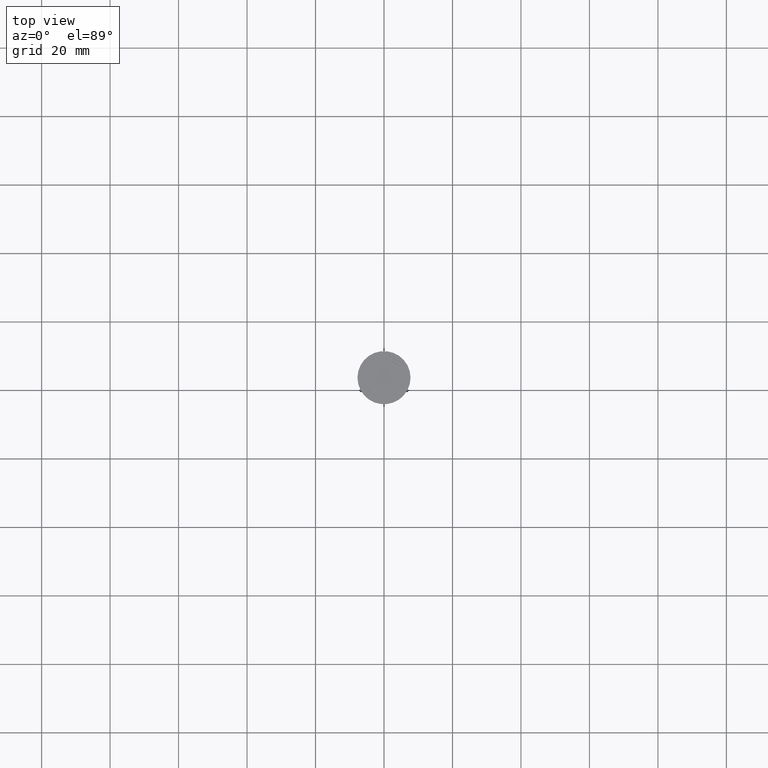
[diagram: clean part render]
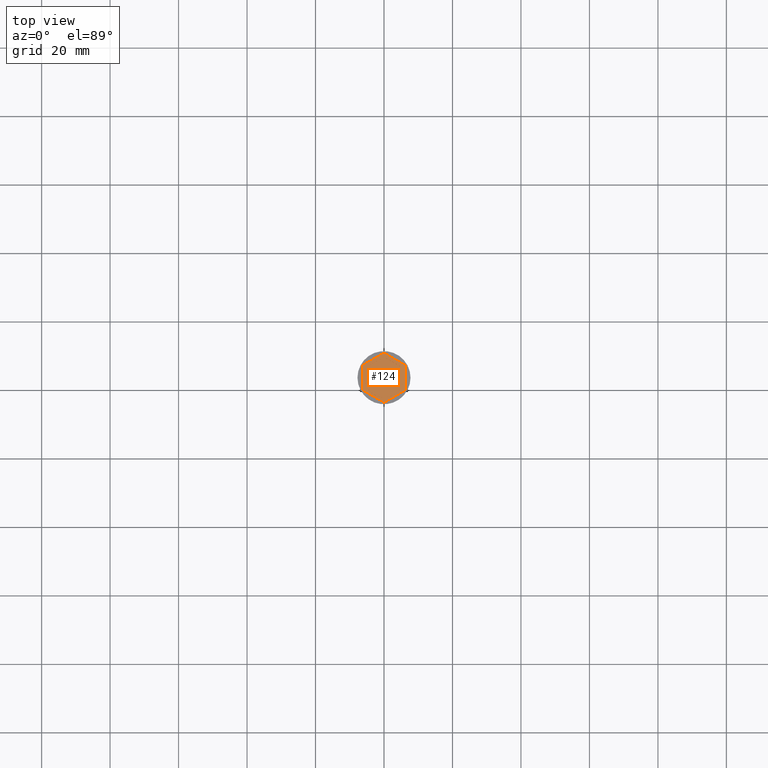
[diagram: same view with one face highlighted and labeled with its STEP entity id]
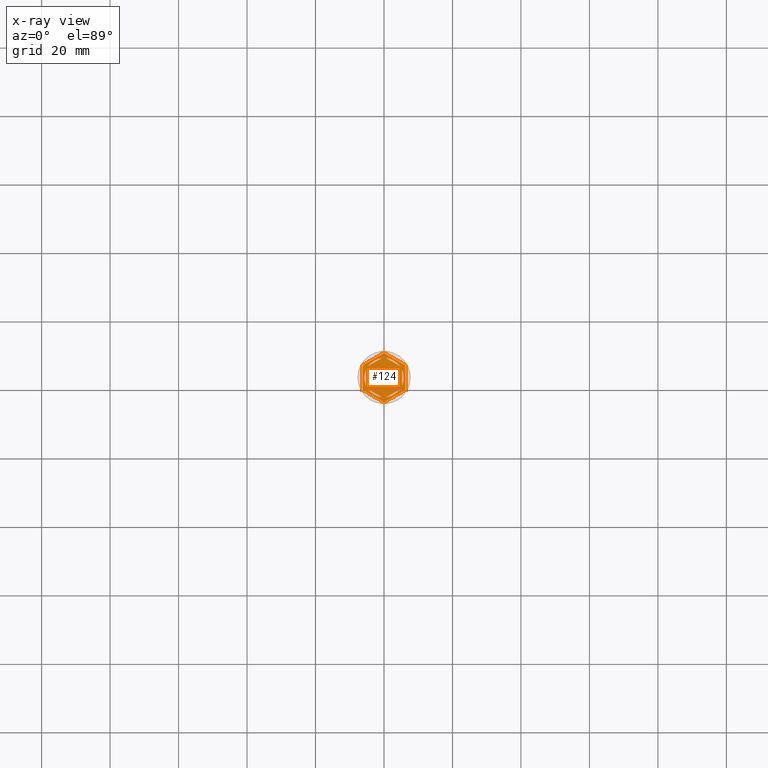
[diagram: x-ray of the same camera — body ghosted, the highlighted face saturated]
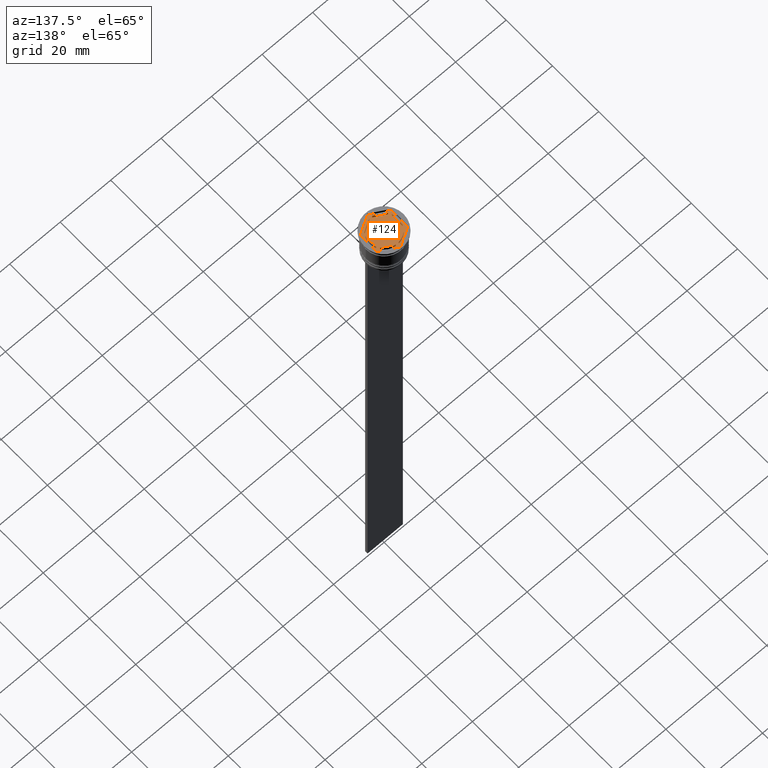
[diagram: same view with one face highlighted and labeled with its STEP entity id]
A machine part, top view. The second image highlights one B-rep face of the part: STEP entity #124.
The next image is the same camera in x-ray: the body ghosted, the highlighted face saturated — about 0% of this face is hidden behind the body in this view.
A second angle (auxiliary view) of the same face is appended — the face is thin or edge-on in the first view.
In plain terms, the highlighted planar face has unit normal (0, 0, 1).
Its self-contained STEP definition (entity closure, byte-faithful):
#7 = FACE_BOUND ( 'NONE', #117, .T. ) ;
#28 = DIRECTION ( 'NONE',  ( 1.000000000000000000, 0.000000000000000000, 0.000000000000000000 ) ) ;
#37 = AXIS2_PLACEMENT_3D ( 'NONE', #63, #1148, #2059 ) ;
#43 = CIRCLE ( 'NONE', #1214, 5.750000000000000000 ) ;
#45 = CARTESIAN_POINT ( 'NONE',  ( 0.000000000000000000, 0.000000000000000000, -1.000000000000000000 ) ) ;
#63 = CARTESIAN_POINT ( 'NONE',  ( 0.000000000000000000, 0.000000000000000000, -1.000000000000000000 ) ) ;
#64 = AXIS2_PLACEMENT_3D ( 'NONE', #1794, #1806, #1960 ) ;
#71 = CARTESIAN_POINT ( 'NONE',  ( 0.000000000000000000, 0.000000000000000000, -1.000000000000000000 ) ) ;
#79 = CARTESIAN_POINT ( 'NONE',  ( -5.249999999999999112, -3.031088913245534311, -1.000000000000000888 ) ) ;
#90 = CARTESIAN_POINT ( 'NONE',  ( -5.249999999999999112, 2.345207879911715310, -1.000000000000000888 ) ) ;
#103 = DIRECTION ( 'NONE',  ( 0.000000000000000000, 0.000000000000000000, 1.000000000000000000 ) ) ;
#106 = EDGE_CURVE ( 'NONE', #1798, #1620, #1422, .T. ) ;
#117 = EDGE_LOOP ( 'NONE', ( #1415, #762 ) ) ;
#124 = ADVANCED_FACE ( 'NONE', ( #358, #2336, #367, #1795, #1622, #7, #1088 ), #1313, .T. ) ;
#126 = DIRECTION ( 'NONE',  ( 1.000000000000000000, 0.000000000000000000, 0.000000000000000000 ) ) ;
#141 = ORIENTED_EDGE ( 'NONE', *, *, #1502, .F. ) ;
#142 = CIRCLE ( 'NONE', #64, 5.750000000000000000 ) ;
#150 = EDGE_CURVE ( 'NONE', #244, #1161, #573, .T. ) ;
#152 = CARTESIAN_POINT ( 'NONE',  ( -6.249999999999999112, -3.608439182435161374, -1.000000000000000000 ) ) ;
#155 = ORIENTED_EDGE ( 'NONE', *, *, #1265, .F. ) ;
#163 = DIRECTION ( 'NONE',  ( 2.403703357979454647E-16, 1.000000000000000000, 0.000000000000000000 ) ) ;
#164 = EDGE_CURVE ( 'NONE', #1536, #1304, #947, .T. ) ;
#174 = CARTESIAN_POINT ( 'NONE',  ( -6.249999999999999112, -3.608439182435161374, -1.000000000000000000 ) ) ;
#201 = EDGE_LOOP ( 'NONE', ( #1725, #373 ) ) ;
#211 = CARTESIAN_POINT ( 'NONE',  ( 6.250000000000000000, 3.608439182435161374, -1.000000000000000000 ) ) ;
#240 = CIRCLE ( 'NONE', #350, 5.750000000000000000 ) ;
#242 = DIRECTION ( 'NONE',  ( -0.8660254037844384856, 0.5000000000000002220, 0.000000000000000000 ) ) ;
#244 = VERTEX_POINT ( 'NONE', #966 ) ;
#281 = CARTESIAN_POINT ( 'NONE',  ( -6.249999999999999112, 3.608439182435158710, -1.000000000000000000 ) ) ;
#289 = CARTESIAN_POINT ( 'NONE',  ( 0.000000000000000000, 0.000000000000000000, -1.000000000000000000 ) ) ;
#307 = AXIS2_PLACEMENT_3D ( 'NONE', #1692, #2035, #1528 ) ;
#313 = CARTESIAN_POINT ( 'NONE',  ( 8.673617379884035472E-16, 6.062177826491070398, -1.000000000000000888 ) ) ;
#350 = AXIS2_PLACEMENT_3D ( 'NONE', #397, #2337, #28 ) ;
#356 = CARTESIAN_POINT ( 'NONE',  ( 8.729740977282959667E-16, -7.216878364870321860, -1.000000000000000000 ) ) ;
#358 = FACE_BOUND ( 'NONE', #2003, .T. ) ;
#360 = EDGE_CURVE ( 'NONE', #1304, #1461, #1201, .T. ) ;
#367 = FACE_BOUND ( 'NONE', #1820, .T. ) ;
#373 = ORIENTED_EDGE ( 'NONE', *, *, #1114, .F. ) ;
#383 = VECTOR ( 'NONE', #2313, 1000.000000000000227 ) ;
#393 = VECTOR ( 'NONE', #242, 1000.000000000000114 ) ;
#397 = CARTESIAN_POINT ( 'NONE',  ( 0.000000000000000000, 0.000000000000000000, -1.000000000000000000 ) ) ;
#417 = DIRECTION ( 'NONE',  ( 1.000000000000000000, 0.000000000000000000, 0.000000000000000000 ) ) ;
#419 = VECTOR ( 'NONE', #2331, 1000.000000000000114 ) ;
#446 = DIRECTION ( 'NONE',  ( 0.000000000000000000, -1.000000000000000000, 0.000000000000000000 ) ) ;
#496 = DIRECTION ( 'NONE',  ( 0.000000000000000000, 0.000000000000000000, 1.000000000000000000 ) ) ;
#503 = CARTESIAN_POINT ( 'NONE',  ( 5.249999999999997335, 3.031088913245537864, -1.000000000000000888 ) ) ;
#516 = VERTEX_POINT ( 'NONE', #1076 ) ;
#546 = ORIENTED_EDGE ( 'NONE', *, *, #1759, .T. ) ;
#573 = CIRCLE ( 'NONE', #1481, 5.750000000000000000 ) ;
#591 = EDGE_CURVE ( 'NONE', #990, #2089, #784, .T. ) ;
#621 = ORIENTED_EDGE ( 'NONE', *, *, #106, .T. ) ;
#630 = CARTESIAN_POINT ( 'NONE',  ( 0.000000000000000000, 7.216878364870320084, -1.000000000000000000 ) ) ;
#649 = DIRECTION ( 'NONE',  ( 0.000000000000000000, 0.000000000000000000, 1.000000000000000000 ) ) ;
#656 = ORIENTED_EDGE ( 'NONE', *, *, #591, .F. ) ;
#658 = CARTESIAN_POINT ( 'NONE',  ( -0.5939903988410105695, -5.719237309824160675, -1.000000000000000888 ) ) ;
#670 = ORIENTED_EDGE ( 'NONE', *, *, #1137, .F. ) ;
#699 = CARTESIAN_POINT ( 'NONE',  ( 0.5939903988410126789, 5.719237309824160675, -1.000000000000000888 ) ) ;
#709 = ORIENTED_EDGE ( 'NONE', *, *, #1972, .F. ) ;
#716 = EDGE_CURVE ( 'NONE', #516, #1798, #1561, .T. ) ;
#718 = CARTESIAN_POINT ( 'NONE',  ( 6.249999999999998224, -3.608439182435161374, -1.000000000000000000 ) ) ;
#727 = VERTEX_POINT ( 'NONE', #1163 ) ;
#760 = VECTOR ( 'NONE', #809, 1000.000000000000000 ) ;
#762 = ORIENTED_EDGE ( 'NONE', *, *, #1140, .F. ) ;
#770 = CARTESIAN_POINT ( 'NONE',  ( -5.750000000000000000, 0.000000000000000000, -1.000000000000000000 ) ) ;
#784 = LINE ( 'NONE', #942, #1026 ) ;
#787 = EDGE_CURVE ( 'NONE', #1673, #1143, #43, .T. ) ;
#809 = DIRECTION ( 'NONE',  ( 0.000000000000000000, 1.000000000000000000, 0.000000000000000000 ) ) ;
#820 = VERTEX_POINT ( 'NONE', #1083 ) ;
#851 = EDGE_LOOP ( 'NONE', ( #670, #1850, #1873 ) ) ;
#866 = DIRECTION ( 'NONE',  ( 1.000000000000000000, 0.000000000000000000, 0.000000000000000000 ) ) ;
#907 = DIRECTION ( 'NONE',  ( 0.8660254037844385966, 0.5000000000000001110, 0.000000000000000000 ) ) ;
#926 = CARTESIAN_POINT ( 'NONE',  ( 5.249999999999996447, -3.031088913245536975, -1.000000000000000888 ) ) ;
#942 = CARTESIAN_POINT ( 'NONE',  ( -1.734723475976807094E-15, -6.062177826491069510, -1.000000000000000888 ) ) ;
#947 = CIRCLE ( 'NONE', #37, 5.750000000000000000 ) ;
#948 = ORIENTED_EDGE ( 'NONE', *, *, #2148, .T. ) ;
#966 = CARTESIAN_POINT ( 'NONE',  ( 4.656009601158988431, 3.374029429912448919, -1.000000000000000888 ) ) ;
#990 = VERTEX_POINT ( 'NONE', #1307 ) ;
#1011 = ORIENTED_EDGE ( 'NONE', *, *, #787, .F. ) ;
#1026 = VECTOR ( 'NONE', #1666, 1000.000000000000114 ) ;
#1042 = VERTEX_POINT ( 'NONE', #630 ) ;
#1069 = VECTOR ( 'NONE', #2282, 1000.000000000000000 ) ;
#1071 = VERTEX_POINT ( 'NONE', #1111 ) ;
#1076 = CARTESIAN_POINT ( 'NONE',  ( -6.249999999999999112, 3.608439182435158710, -1.000000000000000000 ) ) ;
#1082 = EDGE_LOOP ( 'NONE', ( #2329, #948, #2243, #621, #546, #1841 ) ) ;
#1083 = CARTESIAN_POINT ( 'NONE',  ( 5.249999999999997335, 2.345207879911718862, -1.000000000000000888 ) ) ;
#1088 = FACE_OUTER_BOUND ( 'NONE', #1082, .T. ) ;
#1093 = CIRCLE ( 'NONE', #1474, 5.750000000000000000 ) ;
#1095 = VERTEX_POINT ( 'NONE', #211 ) ;
#1097 = DIRECTION ( 'NONE',  ( -1.430775808321103440E-16, -1.000000000000000000, 0.000000000000000000 ) ) ;
#1111 = CARTESIAN_POINT ( 'NONE',  ( 5.249999999999997335, -2.345207879911720639, -1.000000000000000888 ) ) ;
#1114 = EDGE_CURVE ( 'NONE', #820, #1071, #1362, .T. ) ;
#1137 = EDGE_CURVE ( 'NONE', #1461, #1536, #2088, .T. ) ;
#1140 = EDGE_CURVE ( 'NONE', #727, #1205, #1920, .T. ) ;
#1143 = VERTEX_POINT ( 'NONE', #658 ) ;
#1148 = DIRECTION ( 'NONE',  ( 0.000000000000000000, 0.000000000000000000, 1.000000000000000000 ) ) ;
#1161 = VERTEX_POINT ( 'NONE', #699 ) ;
#1163 = CARTESIAN_POINT ( 'NONE',  ( -4.656009601158989319, 3.374029429912446698, -1.000000000000000888 ) ) ;
#1177 = AXIS2_PLACEMENT_3D ( 'NONE', #289, #103, #866 ) ;
#1201 = LINE ( 'NONE', #2263, #760 ) ;
#1205 = VERTEX_POINT ( 'NONE', #2268 ) ;
#1214 = AXIS2_PLACEMENT_3D ( 'NONE', #71, #649, #1354 ) ;
#1217 = CARTESIAN_POINT ( 'NONE',  ( 6.249999999999998224, -3.608439182435161374, -1.000000000000000000 ) ) ;
#1265 = EDGE_CURVE ( 'NONE', #1161, #244, #2123, .T. ) ;
#1281 = EDGE_CURVE ( 'NONE', #1205, #727, #240, .T. ) ;
#1304 = VERTEX_POINT ( 'NONE', #1649 ) ;
#1307 = CARTESIAN_POINT ( 'NONE',  ( 4.656009601158990208, -3.374029429912445810, -1.000000000000000888 ) ) ;
#1313 = PLANE ( 'NONE',  #307 ) ;
#1335 = DIRECTION ( 'NONE',  ( -0.8660254037844388186, 0.4999999999999997224, 0.000000000000000000 ) ) ;
#1354 = DIRECTION ( 'NONE',  ( 1.000000000000000000, 0.000000000000000000, 0.000000000000000000 ) ) ;
#1359 = CARTESIAN_POINT ( 'NONE',  ( 8.729740977282959667E-16, -7.216878364870321860, -1.000000000000000000 ) ) ;
#1362 = LINE ( 'NONE', #926, #2270 ) ;
#1415 = ORIENTED_EDGE ( 'NONE', *, *, #1281, .F. ) ;
#1418 = CARTESIAN_POINT ( 'NONE',  ( 0.000000000000000000, 7.216878364870320084, -1.000000000000000000 ) ) ;
#1422 = LINE ( 'NONE', #152, #383 ) ;
#1461 = VERTEX_POINT ( 'NONE', #90 ) ;
#1472 = VECTOR ( 'NONE', #163, 1000.000000000000000 ) ;
#1474 = AXIS2_PLACEMENT_3D ( 'NONE', #2248, #496, #126 ) ;
#1481 = AXIS2_PLACEMENT_3D ( 'NONE', #45, #1860, #417 ) ;
#1502 = EDGE_CURVE ( 'NONE', #1143, #1673, #1706, .T. ) ;
#1521 = VECTOR ( 'NONE', #446, 1000.000000000000000 ) ;
#1528 = DIRECTION ( 'NONE',  ( 1.000000000000000000, 0.000000000000000000, -0.000000000000000000 ) ) ;
#1536 = VERTEX_POINT ( 'NONE', #770 ) ;
#1539 = EDGE_LOOP ( 'NONE', ( #1011, #141 ) ) ;
#1561 = LINE ( 'NONE', #281, #1521 ) ;
#1563 = VECTOR ( 'NONE', #1944, 1000.000000000000114 ) ;
#1568 = ORIENTED_EDGE ( 'NONE', *, *, #150, .F. ) ;
#1593 = VERTEX_POINT ( 'NONE', #1217 ) ;
#1599 = LINE ( 'NONE', #356, #1883 ) ;
#1620 = VERTEX_POINT ( 'NONE', #1359 ) ;
#1622 = FACE_BOUND ( 'NONE', #851, .T. ) ;
#1649 = CARTESIAN_POINT ( 'NONE',  ( -5.249999999999999112, -2.345207879911715310, -1.000000000000000888 ) ) ;
#1666 = DIRECTION ( 'NONE',  ( -0.8660254037844387076, -0.4999999999999997224, 0.000000000000000000 ) ) ;
#1673 = VERTEX_POINT ( 'NONE', #2322 ) ;
#1692 = CARTESIAN_POINT ( 'NONE',  ( 0.000000000000000000, 0.000000000000000000, -1.000000000000000000 ) ) ;
#1706 = LINE ( 'NONE', #79, #393 ) ;
#1725 = ORIENTED_EDGE ( 'NONE', *, *, #1784, .F. ) ;
#1759 = EDGE_CURVE ( 'NONE', #1620, #1593, #1599, .T. ) ;
#1782 = LINE ( 'NONE', #718, #1472 ) ;
#1784 = EDGE_CURVE ( 'NONE', #1071, #820, #142, .T. ) ;
#1794 = CARTESIAN_POINT ( 'NONE',  ( 0.000000000000000000, 0.000000000000000000, -1.000000000000000000 ) ) ;
#1795 = FACE_BOUND ( 'NONE', #1539, .T. ) ;
#1797 = EDGE_CURVE ( 'NONE', #1593, #1095, #1782, .T. ) ;
#1798 = VERTEX_POINT ( 'NONE', #174 ) ;
#1806 = DIRECTION ( 'NONE',  ( 0.000000000000000000, 0.000000000000000000, 1.000000000000000000 ) ) ;
#1820 = EDGE_LOOP ( 'NONE', ( #709, #656 ) ) ;
#1841 = ORIENTED_EDGE ( 'NONE', *, *, #1797, .T. ) ;
#1850 = ORIENTED_EDGE ( 'NONE', *, *, #360, .F. ) ;
#1860 = DIRECTION ( 'NONE',  ( 0.000000000000000000, 0.000000000000000000, 1.000000000000000000 ) ) ;
#1862 = EDGE_CURVE ( 'NONE', #1095, #1042, #2034, .T. ) ;
#1873 = ORIENTED_EDGE ( 'NONE', *, *, #164, .F. ) ;
#1883 = VECTOR ( 'NONE', #907, 1000.000000000000000 ) ;
#1920 = LINE ( 'NONE', #313, #1069 ) ;
#1944 = DIRECTION ( 'NONE',  ( 0.8660254037844387076, -0.4999999999999998335, 0.000000000000000000 ) ) ;
#1960 = DIRECTION ( 'NONE',  ( 1.000000000000000000, 0.000000000000000000, 0.000000000000000000 ) ) ;
#1972 = EDGE_CURVE ( 'NONE', #2089, #990, #1093, .T. ) ;
#2003 = EDGE_LOOP ( 'NONE', ( #1568, #155 ) ) ;
#2034 = LINE ( 'NONE', #2067, #2187 ) ;
#2035 = DIRECTION ( 'NONE',  ( 0.000000000000000000, 0.000000000000000000, 1.000000000000000000 ) ) ;
#2059 = DIRECTION ( 'NONE',  ( 1.000000000000000000, 0.000000000000000000, 0.000000000000000000 ) ) ;
#2067 = CARTESIAN_POINT ( 'NONE',  ( 6.250000000000000000, 3.608439182435161374, -1.000000000000000000 ) ) ;
#2088 = CIRCLE ( 'NONE', #1177, 5.750000000000000000 ) ;
#2089 = VERTEX_POINT ( 'NONE', #2093 ) ;
#2093 = CARTESIAN_POINT ( 'NONE',  ( 0.5939903988410074609, -5.719237309824160675, -1.000000000000000888 ) ) ;
#2123 = LINE ( 'NONE', #503, #1563 ) ;
#2148 = EDGE_CURVE ( 'NONE', #1042, #516, #2151, .T. ) ;
#2151 = LINE ( 'NONE', #1418, #419 ) ;
#2187 = VECTOR ( 'NONE', #1335, 1000.000000000000000 ) ;
#2243 = ORIENTED_EDGE ( 'NONE', *, *, #716, .T. ) ;
#2248 = CARTESIAN_POINT ( 'NONE',  ( 0.000000000000000000, 0.000000000000000000, -1.000000000000000000 ) ) ;
#2263 = CARTESIAN_POINT ( 'NONE',  ( -5.249999999999999112, 3.031088913245535199, -1.000000000000000888 ) ) ;
#2268 = CARTESIAN_POINT ( 'NONE',  ( -0.5939903988410105695, 5.719237309824159787, -1.000000000000000888 ) ) ;
#2270 = VECTOR ( 'NONE', #1097, 1000.000000000000000 ) ;
#2282 = DIRECTION ( 'NONE',  ( 0.8660254037844387076, 0.4999999999999999445, -0.000000000000000000 ) ) ;
#2313 = DIRECTION ( 'NONE',  ( 0.8660254037844385966, -0.4999999999999998890, 0.000000000000000000 ) ) ;
#2322 = CARTESIAN_POINT ( 'NONE',  ( -4.656009601158991096, -3.374029429912444034, -1.000000000000000888 ) ) ;
#2329 = ORIENTED_EDGE ( 'NONE', *, *, #1862, .T. ) ;
#2331 = DIRECTION ( 'NONE',  ( -0.8660254037844385966, -0.5000000000000001110, 0.000000000000000000 ) ) ;
#2336 = FACE_BOUND ( 'NONE', #201, .T. ) ;
#2337 = DIRECTION ( 'NONE',  ( 0.000000000000000000, 0.000000000000000000, 1.000000000000000000 ) ) ;